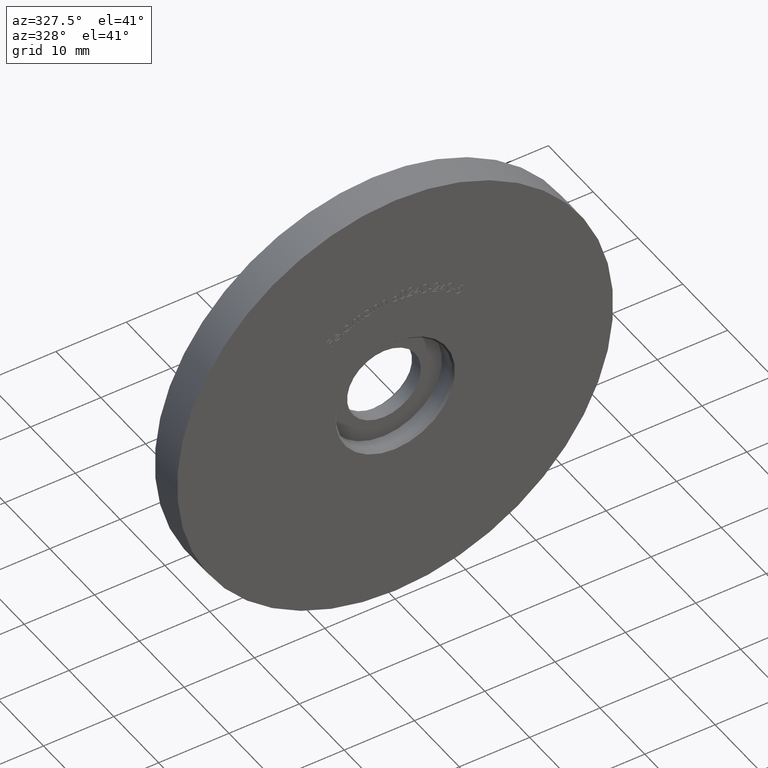
[diagram: clean part render]
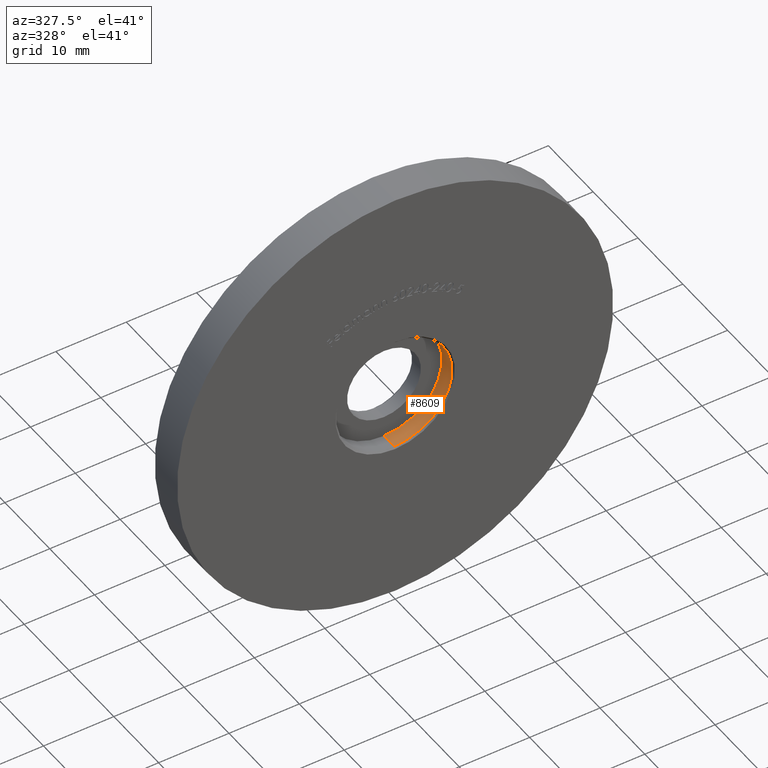
[diagram: same view with one face highlighted and labeled with its STEP entity id]
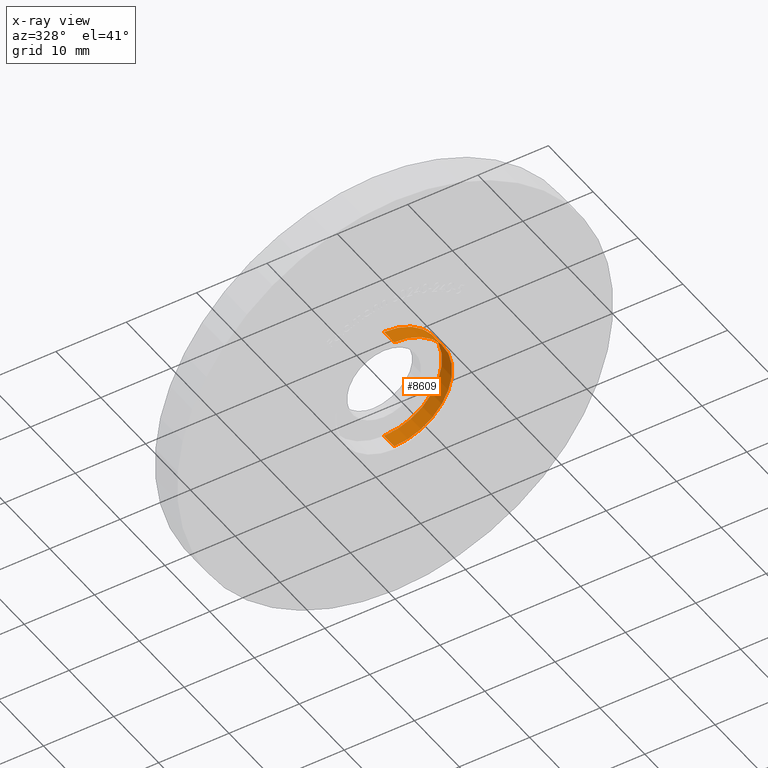
[diagram: x-ray of the same camera — body ghosted, the highlighted face saturated]
A machine part, auxiliary view. The second image highlights one B-rep face of the part: STEP entity #8609.
The next image is the same camera in x-ray: the body ghosted, the highlighted face saturated — about 0% of this face is hidden behind the body in this view.
In plain terms, the highlighted cylindrical surface (partial cylindrical patch) has radius 8.25 mm, axis along (-0, 1, -0).
Its self-contained STEP definition (entity closure, byte-faithful):
#891 = CARTESIAN_POINT ( 'NONE',  ( 0.000000000000000000, 0.2499999999999993616, 0.000000000000000000 ) ) ;
#1348 = CARTESIAN_POINT ( 'NONE',  ( 0.000000000000000000, 2.500000000000000000, 0.000000000000000000 ) ) ;
#1378 = FACE_OUTER_BOUND ( 'NONE', #10232, .T. ) ;
#1744 = DIRECTION ( 'NONE',  ( -0.000000000000000000, 1.000000000000000000, -0.000000000000000000 ) ) ;
#2366 = LINE ( 'NONE', #2866, #9470 ) ;
#2866 = CARTESIAN_POINT ( 'NONE',  ( 0.000000000000000000, 4.999999999999997335, 8.249999999999998224 ) ) ;
#3252 = ORIENTED_EDGE ( 'NONE', *, *, #11201, .F. ) ;
#4137 = AXIS2_PLACEMENT_3D ( 'NONE', #10030, #4754, #10122 ) ;
#4754 = DIRECTION ( 'NONE',  ( -0.000000000000000000, 1.000000000000000000, -0.000000000000000000 ) ) ;
#4854 = EDGE_CURVE ( 'NONE', #13510, #8729, #11560, .T. ) ;
#4943 = AXIS2_PLACEMENT_3D ( 'NONE', #891, #5346, #11943 ) ;
#5257 = CYLINDRICAL_SURFACE ( 'NONE', #4137, 8.249999999999998224 ) ;
#5346 = DIRECTION ( 'NONE',  ( -0.000000000000000000, 1.000000000000000000, -0.000000000000000000 ) ) ;
#5655 = CARTESIAN_POINT ( 'NONE',  ( 0.000000000000000000, 2.500000000000000000, 8.249999999999998224 ) ) ;
#6153 = CARTESIAN_POINT ( 'NONE',  ( 0.000000000000000000, 0.2499999999999993616, 8.249999999999998224 ) ) ;
#6389 = EDGE_CURVE ( 'NONE', #12861, #7102, #6956, .T. ) ;
#6956 = CIRCLE ( 'NONE', #4943, 8.249999999999998224 ) ;
#7102 = VERTEX_POINT ( 'NONE', #9910 ) ;
#8609 = ADVANCED_FACE ( 'NONE', ( #1378 ), #5257, .F. ) ;
#8729 = VERTEX_POINT ( 'NONE', #13624 ) ;
#9470 = VECTOR ( 'NONE', #1744, 1000.000000000000000 ) ;
#9910 = CARTESIAN_POINT ( 'NONE',  ( 1.010333609296566353E-15, 0.2499999999999993616, -8.249999999999998224 ) ) ;
#10030 = CARTESIAN_POINT ( 'NONE',  ( 0.000000000000000000, 4.999999999999997335, 0.000000000000000000 ) ) ;
#10122 = DIRECTION ( 'NONE',  ( 0.000000000000000000, 0.000000000000000000, 1.000000000000000000 ) ) ;
#10232 = EDGE_LOOP ( 'NONE', ( #3252, #13212, #12837, #12892 ) ) ;
#10625 = VECTOR ( 'NONE', #11749, 1000.000000000000000 ) ;
#11001 = DIRECTION ( 'NONE',  ( 0.000000000000000000, 0.000000000000000000, 1.000000000000000000 ) ) ;
#11098 = EDGE_CURVE ( 'NONE', #12861, #13510, #2366, .T. ) ;
#11201 = EDGE_CURVE ( 'NONE', #7102, #8729, #12840, .T. ) ;
#11560 = CIRCLE ( 'NONE', #11775, 8.249999999999998224 ) ;
#11749 = DIRECTION ( 'NONE',  ( -0.000000000000000000, 1.000000000000000000, -0.000000000000000000 ) ) ;
#11775 = AXIS2_PLACEMENT_3D ( 'NONE', #1348, #13020, #11001 ) ;
#11943 = DIRECTION ( 'NONE',  ( 0.000000000000000000, 0.000000000000000000, 1.000000000000000000 ) ) ;
#12837 = ORIENTED_EDGE ( 'NONE', *, *, #11098, .T. ) ;
#12840 = LINE ( 'NONE', #13969, #10625 ) ;
#12861 = VERTEX_POINT ( 'NONE', #6153 ) ;
#12892 = ORIENTED_EDGE ( 'NONE', *, *, #4854, .T. ) ;
#13020 = DIRECTION ( 'NONE',  ( -0.000000000000000000, 1.000000000000000000, -0.000000000000000000 ) ) ;
#13212 = ORIENTED_EDGE ( 'NONE', *, *, #6389, .F. ) ;
#13510 = VERTEX_POINT ( 'NONE', #5655 ) ;
#13624 = CARTESIAN_POINT ( 'NONE',  ( 1.010333609296566353E-15, 2.500000000000000000, -8.249999999999998224 ) ) ;
#13969 = CARTESIAN_POINT ( 'NONE',  ( 1.010333609296566353E-15, 4.999999999999997335, -8.249999999999998224 ) ) ;